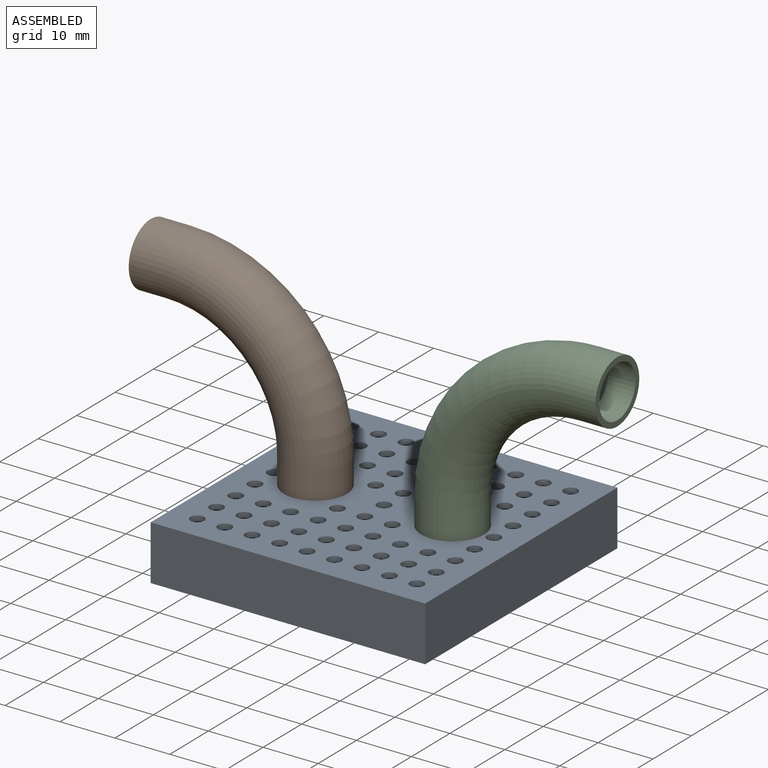
[diagram: assembled view]
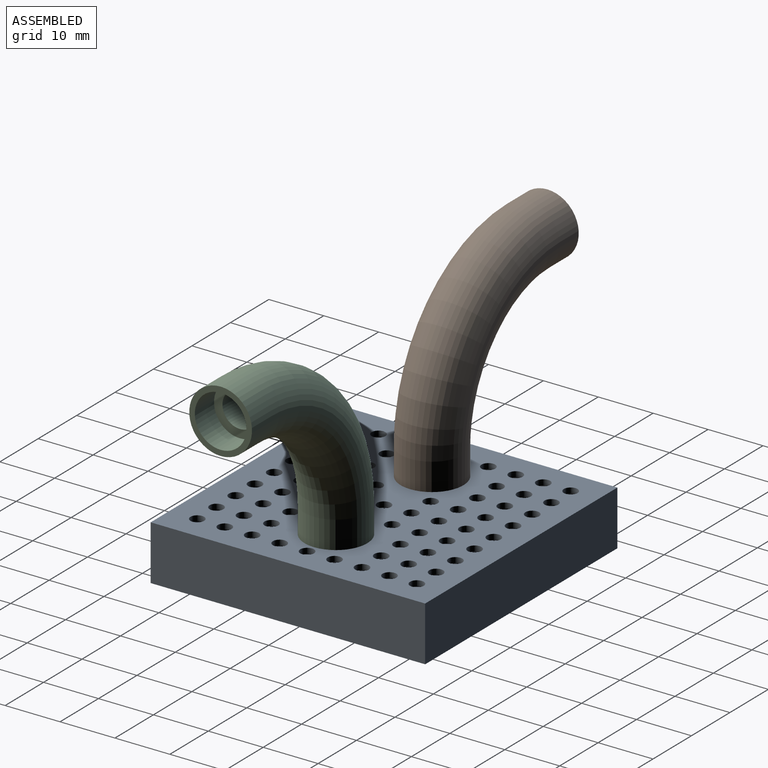
[diagram: assembled view, second angle]
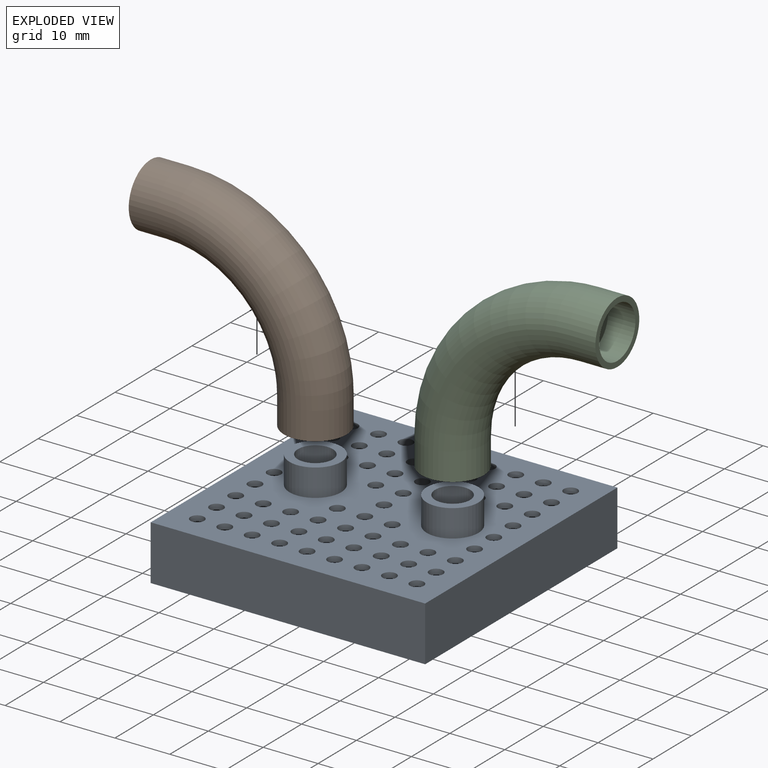
[diagram: exploded view]
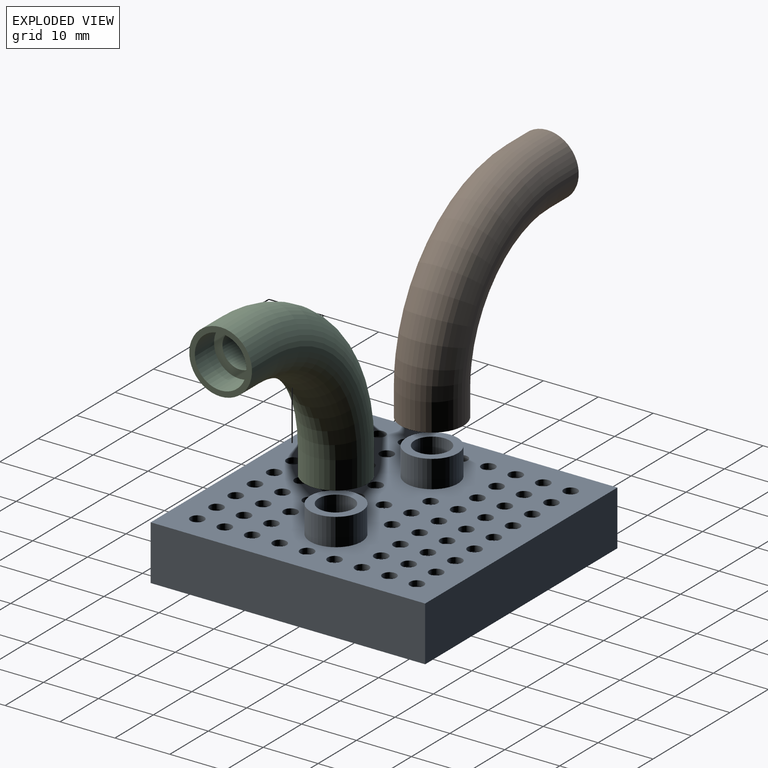
[diagram: exploded view, second angle]
ASSEMBLY  parts=3 mates=2
PART A: 85 faces, bbox 50x50x15 mm
  f0: plane 50x50mm, normal (0,0,1), area 2032mm2, adj f9,f10,f11,f12,f14,f16,f18,f19
  f1: plane 48x48mm, normal (0,0,-1), area 1911.8mm2, adj f2,f3,f4,f5,f7,f8,f18,f19
  f2: plane 48x8mm, normal (1,0,0), area 384mm2, adj f1,f3,f5,f6
  f3: plane 48x8mm, normal (0,1,0), area 384mm2, adj f1,f2,f4,f6
  f4: plane 48x8mm, normal (-1,0,0), area 384mm2, adj f1,f3,f5,f6
  f5: plane 48x8mm, normal (0,-1,0), area 384mm2, adj f1,f2,f4,f6
  f6: plane 48x48mm, normal (0,0,1), area 2304mm2, adj f2,f3,f4,f5
  f7: cylinder r=3.17mm len=6.35mm, axis (0,0,1), area 119.7mm2, adj f1,f15
  f8: cylinder r=3.17mm len=6.35mm, axis (0,0,1), area 119.7mm2, adj f1,f17
  f9: plane 50x10mm, normal (-1,0,0), area 500mm2, adj f0,f10,f12,f13
  f10: plane 50x10mm, normal (0,-1,0), area 500mm2, adj f0,f9,f11,f13
  f11: plane 50x10mm, normal (1,0,0), area 500mm2, adj f0,f10,f12,f13
  f12: plane 50x10mm, normal (0,1,0), area 500mm2, adj f0,f9,f11,f13
  f13: plane 50x50mm, normal (0,0,-1), area 2500mm2, adj f9,f10,f11,f12
  f14: cylinder r=4.71mm len=9.41mm, axis (0,0,-1), area 147.8mm2, adj f0,f15
  f15: plane 9.41x9.41mm, normal (0,0,1), area 37.9mm2, adj f7,f14
  f16: cylinder r=4.71mm len=9.41mm, axis (0,0,-1), area 147.8mm2, adj f0,f17
  f17: plane 9.41x9.41mm, normal (0,0,1), area 37.9mm2, adj f8,f16
  f18: cylinder r=1.25mm len=2.5mm, axis (0,0,1), area 7.9mm2, adj f0,f1
  f19: cylinder r=1.25mm len=2.5mm, axis (0,0,1), area 7.9mm2, adj f0,f1
  f20: cylinder r=1.25mm len=2.5mm, axis (0,0,1), area 7.9mm2, adj f0,f1
  f21: cylinder r=1.25mm len=2.5mm, axis (0,0,1), area 7.9mm2, adj f0,f1
  f22: cylinder r=1.25mm len=2.5mm, axis (0,0,1), area 7.9mm2, adj f0,f1
  f23: cylinder r=1.25mm len=2.5mm, axis (0,0,1), area 7.9mm2, adj f0,f1
  f24: cylinder r=1.25mm len=2.5mm, axis (0,0,1), area 7.9mm2, adj f0,f1
  f25: cylinder r=1.25mm len=2.5mm, axis (0,0,1), area 7.9mm2, adj f0,f1
  f26: cylinder r=1.25mm len=2.5mm, axis (0,0,1), area 7.9mm2, adj f0,f1
  f27: cylinder r=1.25mm len=2.5mm, axis (0,0,1), area 7.9mm2, adj f0,f1
  f28: cylinder r=1.25mm len=2.5mm, axis (0,0,1), area 7.9mm2, adj f0,f1
  f29: cylinder r=1.25mm len=2.5mm, axis (0,0,1), area 7.9mm2, adj f0,f1
  f30: cylinder r=1.25mm len=2.5mm, axis (0,0,1), area 7.9mm2, adj f0,f1
  f31: cylinder r=1.25mm len=2.5mm, axis (0,0,1), area 7.9mm2, adj f0,f1
  f32: cylinder r=1.25mm len=2.5mm, axis (0,0,1), area 7.9mm2, adj f0,f1
  f33: cylinder r=1.25mm len=2.5mm, axis (0,0,1), area 7.9mm2, adj f0,f1
  f34: cylinder r=1.25mm len=2.5mm, axis (0,0,1), area 7.9mm2, adj f0,f1
  f35: cylinder r=1.25mm len=2.5mm, axis (0,0,1), area 7.9mm2, adj f0,f1
  f36: cylinder r=1.25mm len=2.5mm, axis (0,0,1), area 7.9mm2, adj f0,f1
  f37: cylinder r=1.25mm len=2.5mm, axis (0,0,1), area 7.9mm2, adj f0,f1
  f38: cylinder r=1.25mm len=2.5mm, axis (0,0,1), area 7.9mm2, adj f0,f1
  f39: cylinder r=1.25mm len=2.5mm, axis (0,0,1), area 7.9mm2, adj f0,f1
  f40: cylinder r=1.25mm len=2.5mm, axis (0,0,1), area 7.9mm2, adj f0,f1
  f41: cylinder r=1.25mm len=2.5mm, axis (0,0,1), area 7.9mm2, adj f0,f1
  f42: cylinder r=1.25mm len=2.5mm, axis (0,0,1), area 7.9mm2, adj f0,f1
  f43: cylinder r=1.25mm len=2.5mm, axis (0,0,1), area 7.9mm2, adj f0,f1
  f44: cylinder r=1.25mm len=2.5mm, axis (0,0,1), area 7.9mm2, adj f0,f1
  f45: cylinder r=1.25mm len=2.5mm, axis (0,0,1), area 7.9mm2, adj f0,f1
  f46: cylinder r=1.25mm len=2.5mm, axis (0,0,1), area 7.9mm2, adj f0,f1
  f47: cylinder r=1.25mm len=2.5mm, axis (0,0,1), area 7.9mm2, adj f0,f1
  f48: cylinder r=1.25mm len=2.5mm, axis (0,0,1), area 7.9mm2, adj f0,f1
  f49: cylinder r=1.25mm len=2.5mm, axis (0,0,1), area 7.9mm2, adj f0,f1
  f50: cylinder r=1.25mm len=2.5mm, axis (0,0,1), area 7.9mm2, adj f0,f1
  f51: cylinder r=1.25mm len=2.5mm, axis (0,0,1), area 7.9mm2, adj f0,f1
  f52: cylinder r=1.25mm len=2.5mm, axis (0,0,1), area 7.9mm2, adj f0,f1
  f53: cylinder r=1.25mm len=2.5mm, axis (0,0,1), area 7.9mm2, adj f0,f1
  f54: cylinder r=1.25mm len=2.5mm, axis (0,0,1), area 7.9mm2, adj f0,f1
  f55: cylinder r=1.25mm len=2.5mm, axis (0,0,1), area 7.9mm2, adj f0,f1
  f56: cylinder r=1.25mm len=2.5mm, axis (0,0,1), area 7.9mm2, adj f0,f1
  f57: cylinder r=1.25mm len=2.5mm, axis (0,0,1), area 7.9mm2, adj f0,f1
  f58: cylinder r=1.25mm len=2.5mm, axis (0,0,1), area 7.9mm2, adj f0,f1
  f59: cylinder r=1.25mm len=2.5mm, axis (0,0,1), area 7.9mm2, adj f0,f1
  f60: cylinder r=1.25mm len=2.5mm, axis (0,0,1), area 7.9mm2, adj f0,f1
  f61: cylinder r=1.25mm len=2.5mm, axis (0,0,1), area 7.9mm2, adj f0,f1
  f62: cylinder r=1.25mm len=2.5mm, axis (0,0,1), area 7.9mm2, adj f0,f1
  f63: cylinder r=1.25mm len=2.5mm, axis (0,0,1), area 7.9mm2, adj f0,f1
  f64: cylinder r=1.25mm len=2.5mm, axis (0,0,1), area 7.9mm2, adj f0,f1
  f65: cylinder r=1.25mm len=2.5mm, axis (0,0,1), area 7.9mm2, adj f0,f1
  f66: cylinder r=1.25mm len=2.5mm, axis (0,0,1), area 7.9mm2, adj f0,f1
  f67: cylinder r=1.25mm len=2.5mm, axis (0,0,1), area 7.9mm2, adj f0,f1
  f68: cylinder r=1.25mm len=2.5mm, axis (0,0,1), area 7.9mm2, adj f0,f1
  f69: cylinder r=1.25mm len=2.5mm, axis (0,0,1), area 7.9mm2, adj f0,f1
  f70: cylinder r=1.25mm len=2.5mm, axis (0,0,1), area 7.9mm2, adj f0,f1
  f71: cylinder r=1.25mm len=2.5mm, axis (0,0,1), area 7.9mm2, adj f0,f1
  f72: cylinder r=1.25mm len=2.5mm, axis (0,0,1), area 7.9mm2, adj f0,f1
  f73: cylinder r=1.25mm len=2.5mm, axis (0,0,1), area 7.9mm2, adj f0,f1
  f74: cylinder r=1.25mm len=2.5mm, axis (0,0,1), area 7.9mm2, adj f0,f1
  f75: cylinder r=1.25mm len=2.5mm, axis (0,0,1), area 7.9mm2, adj f0,f1
  f76: cylinder r=1.25mm len=2.5mm, axis (0,0,1), area 7.9mm2, adj f0,f1
  f77: cylinder r=1.25mm len=2.5mm, axis (0,0,1), area 7.9mm2, adj f0,f1
  f78: cylinder r=1.25mm len=2.5mm, axis (0,0,1), area 7.9mm2, adj f0,f1
  f79: cylinder r=1.25mm len=2.5mm, axis (0,0,1), area 7.9mm2, adj f0,f1
  f80: cylinder r=1.25mm len=2.5mm, axis (0,0,1), area 7.9mm2, adj f0,f1
  f81: cylinder r=1.25mm len=2.5mm, axis (0,0,1), area 7.9mm2, adj f0,f1
  f82: cylinder r=1.25mm len=2.5mm, axis (0,0,1), area 7.9mm2, adj f0,f1
  f83: cylinder r=1.25mm len=2.5mm, axis (0,0,1), area 7.9mm2, adj f0,f1
  f84: cylinder r=1.25mm len=2.5mm, axis (0,0,1), area 7.9mm2, adj f0,f1
PART B: 10 faces, bbox 38.2x38.2x11.4 mm
  f0: plane 9.41x9.41mm, normal (1,0,0), area 37.9mm2, adj f2,f7
  f1: plane 9.41x9.41mm, normal (0,-1,0), area 37.9mm2, adj f2,f4
  f2: torus R=25mm, axis (0,0,-1), area 783.4mm2, adj f0,f1
  f3: torus R=25mm, axis (0,0,-1), area 1410.1mm2, adj f5,f8
  f4: cylinder r=4.71mm len=9.41mm, axis (0,1,0), area 147.8mm2, adj f1,f6
  f5: cylinder r=5.71mm len=11.43mm, axis (0,1,0), area 179.5mm2, adj f3,f6
  f6: plane 11.43x11.43mm, normal (0,-1,0), area 33mm2, adj f4,f5
  f7: cylinder r=4.71mm len=9.41mm, axis (-1,0,0), area 147.8mm2, adj f0,f9
  f8: cylinder r=5.71mm len=11.43mm, axis (-1,0,0), area 179.5mm2, adj f3,f9
  f9: plane 11.43x11.43mm, normal (1,0,0), area 33mm2, adj f7,f8
PART C: same geometry as B
PLACE A at identity
PLACE B rot(axis=(0.58,0.58,-0.58),120deg) t=(-37.5,0,15)mm
PLACE C rot(axis=(1,0,0),90deg) t=(37.5,0,15)mm
MATE slider B.f7 <-> A.f7  axis (0,0,1) through (-12.5,0,15)mm
MATE slider C.f4 <-> A.f8  axis (0,0,-1) through (12.5,0,15)mm
